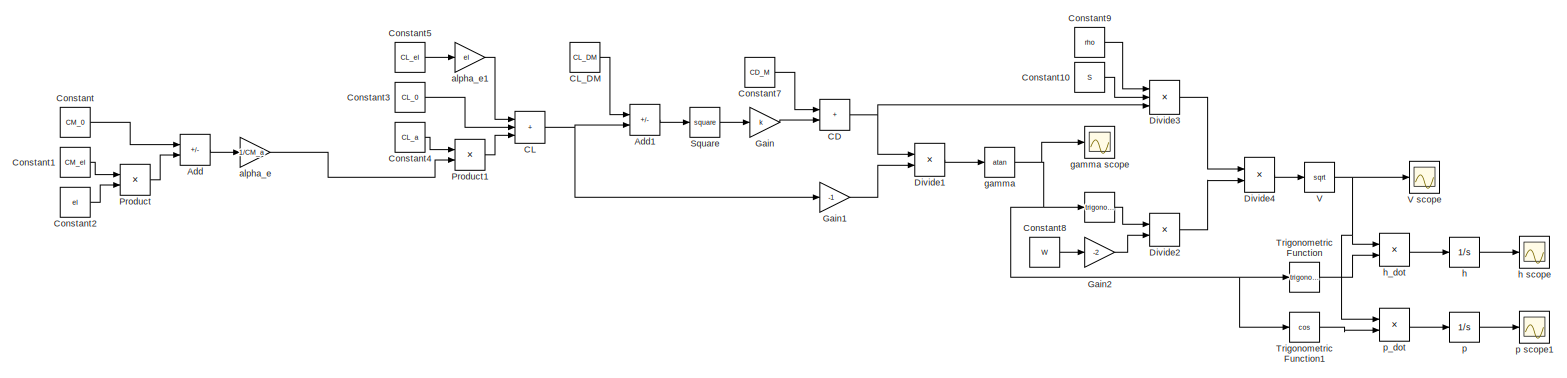
[diagram: root canvas - part 1/1, most of the canvas]
MODEL slx_55e509c579c9
KIND model
CONFIG AbsTol = auto
CONFIG EnableMultiTasking = off
CONFIG FixedStep = auto
CONFIG MaxStep = auto
CONFIG MinStep = auto
CONFIG RelTol = 1e-3
CONFIG SampleTimeConstraint = Unconstrained
CONFIG SolverName = VariableStepAuto
CONFIG StartTime = 0.0
CONFIG StopTime = 10.0
BLOCK [Trigonometry]  
  Ports = [1, 1]
BLOCK [Sum] Add
  IconShape = rectangular
  Inputs = --
  Ports = [2, 1]
BLOCK [Sum] Add1
  IconShape = rectangular
  Inputs = -+
  Ports = [2, 1]
BLOCK [Sum] CD
  IconShape = rectangular
  Ports = [2, 1]
BLOCK [Sum] CL
  IconShape = rectangular
  Inputs = +++
  Ports = [3, 1]
BLOCK [Constant] CL_DM
  Value = CL_DM
BLOCK [Constant] Constant
  Value = CM_0
BLOCK [Constant] Constant1
  Value = CM_el
BLOCK [Constant] Constant10
  Value = S
BLOCK [Constant] Constant2
  Value = el
BLOCK [Constant] Constant3
  Value = CL_0
BLOCK [Constant] Constant4
  Value = CL_a
BLOCK [Constant] Constant5
  Value = CL_el
BLOCK [Constant] Constant7
  Value = CD_M
BLOCK [Constant] Constant8
  Value = W
BLOCK [Constant] Constant9
  Value = rho
BLOCK [Product] Divide1
  Inputs = */
  Ports = [2, 1]
BLOCK [Product] Divide2
  Inputs = **
  Ports = [2, 1]
BLOCK [Product] Divide3
  Inputs = ***
  Ports = [3, 1]
BLOCK [Product] Divide4
  Inputs = /*
  Ports = [2, 1]
BLOCK [Gain] Gain
  Gain = k
BLOCK [Gain] Gain1
  Gain = -1
BLOCK [Gain] Gain2
  Gain = -2
BLOCK [Product] Product
  Ports = [2, 1]
BLOCK [Product] Product1
  Ports = [2, 1]
BLOCK [Math] Square
  Operator = square
  Ports = [1, 1]
  RndMeth = Zero
  SignedPower = on
BLOCK [Trigonometry] Trigonometric Function
  Ports = [1, 1]
BLOCK [Trigonometry] Trigonometric Function1
  Operator = cos
  Ports = [1, 1]
BLOCK [Sqrt] V
BLOCK [Scope] V scope
  Floating = off
  NumInputPorts = 1
  Ports = [1]
  ScopeSpecificationString = Simulink.scopes.TimeScopeBlockCfg('CurrentConfiguration', extmgr.ConfigurationSet(extmgr.Configuration('Core','General UI',true),extmgr.Configuration('Core','Source UI',true),extmgr.Configuration('Sources','WiredSimulink',true,'DataLoggingVariableName','ScopeData1'),extmgr.Configuration('Visuals','Time Domain',true,'SerializedDisplays',{struct('MinYLimReal','46.60154','MaxYLimReal','246.60154','YL...<+1434ch>
BLOCK [Gain] alpha_e
  Gain = 1/CM_a
BLOCK [Gain] alpha_e1
  Gain = el
BLOCK [Trigonometry] gamma
  Operator = atan
  Ports = [1, 1]
BLOCK [Scope] gamma scope
  Floating = off
  NumInputPorts = 1
  Ports = [1]
  ScopeSpecificationString = Simulink.scopes.TimeScopeBlockCfg('CurrentConfiguration', extmgr.ConfigurationSet(extmgr.Configuration('Core','General UI',true),extmgr.Configuration('Core','Source UI',true),extmgr.Configuration('Sources','WiredSimulink',true,'DataLoggingVariableName','ScopeData2'),extmgr.Configuration('Visuals','Time Domain',true,'SerializedDisplays',{struct('MinYLimReal','46.60154','MaxYLimReal','246.60154','YL...<+1434ch>
BLOCK [Integrator] h
  Ports = [1, 1]
BLOCK [Scope] h scope
  Floating = off
  NumInputPorts = 1
  Ports = [1]
  ScopeSpecificationString = Simulink.scopes.TimeScopeBlockCfg('CurrentConfiguration', extmgr.ConfigurationSet(extmgr.Configuration('Core','General UI',true),extmgr.Configuration('Core','Source UI',true),extmgr.Configuration('Sources','WiredSimulink',true),extmgr.Configuration('Visuals','Time Domain',true,'SerializedDisplays',{struct('MinYLimReal','-115.89343','MaxYLimReal','12.87705','YLabelReal','','MinYLimMag',' 0.00000','...<+1362ch>
BLOCK [Product] h_dot
  Inputs = **
  Ports = [2, 1]
BLOCK [Integrator] p
  Ports = [1, 1]
BLOCK [Scope] p scope1
  Floating = off
  NumInputPorts = 1
  Ports = [1]
  ScopeSpecificationString = Simulink.scopes.TimeScopeBlockCfg('CurrentConfiguration', extmgr.ConfigurationSet(extmgr.Configuration('Core','General UI',true),extmgr.Configuration('Core','Source UI',true),extmgr.Configuration('Sources','WiredSimulink',true,'DataLoggingVariableName','ScopeData3'),extmgr.Configuration('Visuals','Time Domain',true,'SerializedDisplays',{struct('MinYLimReal','-182.79894','MaxYLimReal','1645.19042',...<+1407ch>
BLOCK [Product] p_dot
  Inputs = **
  Ports = [2, 1]
LINE  :1 -> Divide2:1
LINE Add1:1 -> Square:1
LINE Add:1 -> alpha_e:1
NET CD:1 -> Divide1:1, Divide3:3
NET CL:1 -> Add1:2, Gain1:1
LINE CL_DM:1 -> Add1:1
LINE Constant10:1 -> Divide3:2
LINE Constant1:1 -> Product:1
LINE Constant2:1 -> Product:2
LINE Constant3:1 -> CL:2
LINE Constant4:1 -> Product1:1
LINE Constant5:1 -> alpha_e1:1
LINE Constant7:1 -> CD:1
LINE Constant8:1 -> Gain2:1
LINE Constant9:1 -> Divide3:1
LINE Constant:1 -> Add:1
LINE Divide1:1 -> gamma:1
LINE Divide2:1 -> Divide4:2
LINE Divide3:1 -> Divide4:1
LINE Divide4:1 -> V:1
LINE Gain1:1 -> Divide1:2
LINE Gain2:1 -> Divide2:2
LINE Gain:1 -> CD:2
LINE Product1:1 -> CL:3
LINE Product:1 -> Add:2
LINE Square:1 -> Gain:1
LINE Trigonometric Function1:1 -> p_dot:2
LINE Trigonometric Function:1 -> h_dot:2
NET V:1 -> V scope:1, h_dot:1, p_dot:1
LINE alpha_e1:1 -> CL:1
LINE alpha_e:1 -> Product1:2
NET gamma:1 ->  :1, Trigonometric Function1:1, Trigonometric Function:1, gamma scope:1
LINE h:1 -> h scope:1
LINE h_dot:1 -> h:1
LINE p:1 -> p scope1:1
LINE p_dot:1 -> p:1
note: NET lines group one-source signal fan-out (src -> all destinations, sorted); 1:1 wires keep LINE
